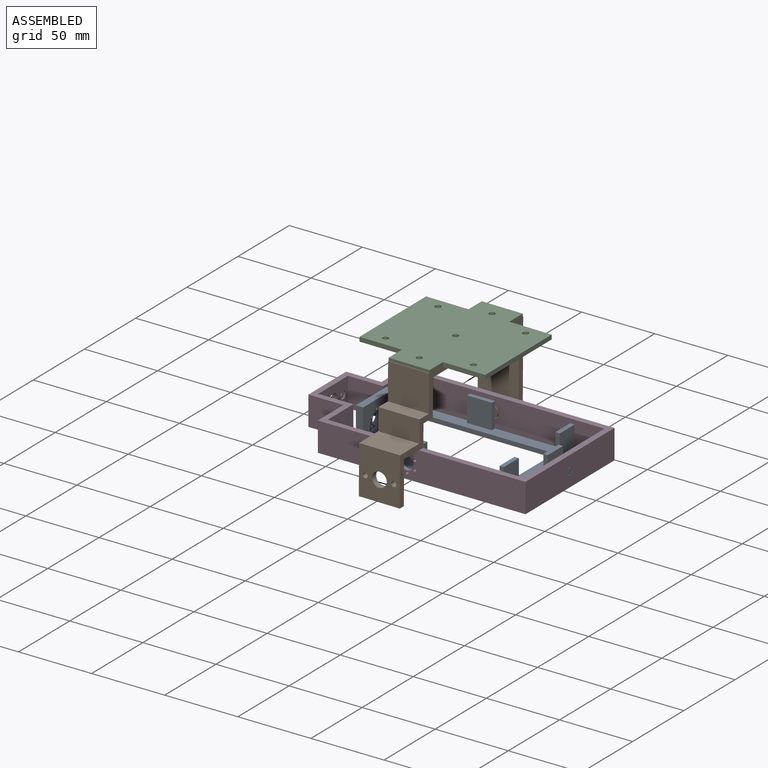
[diagram: assembled view]
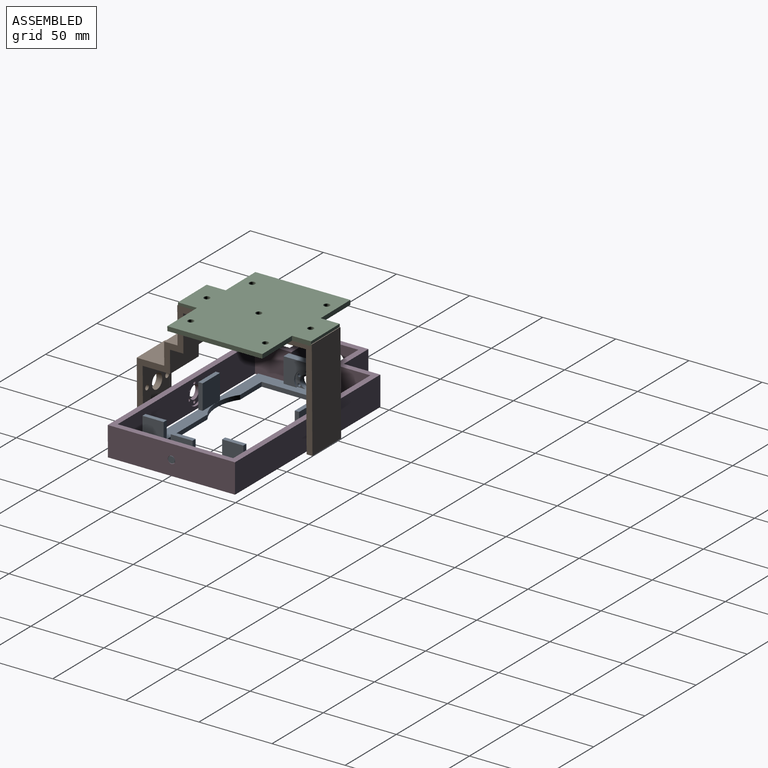
[diagram: assembled view, second angle]
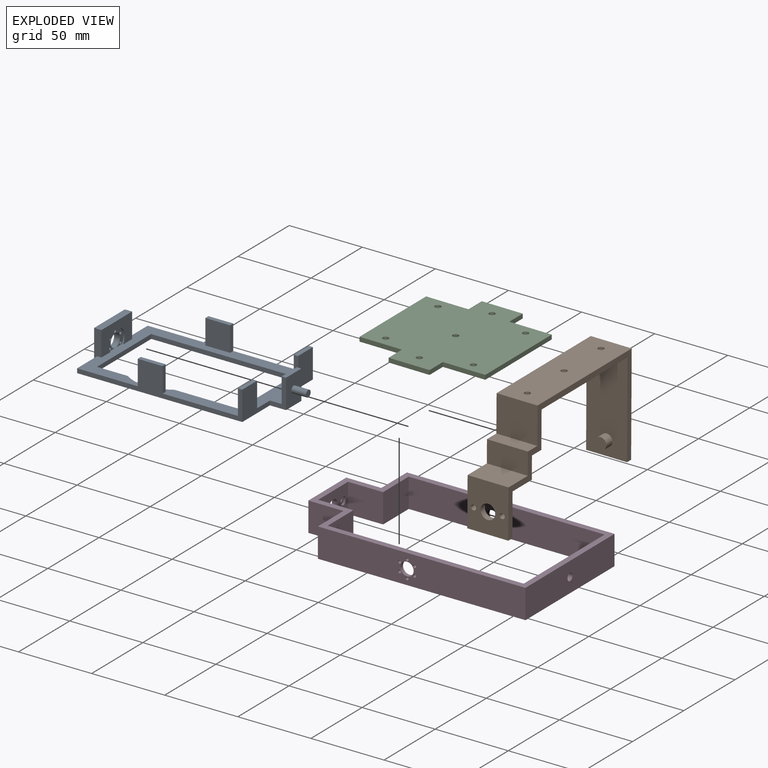
[diagram: exploded view]
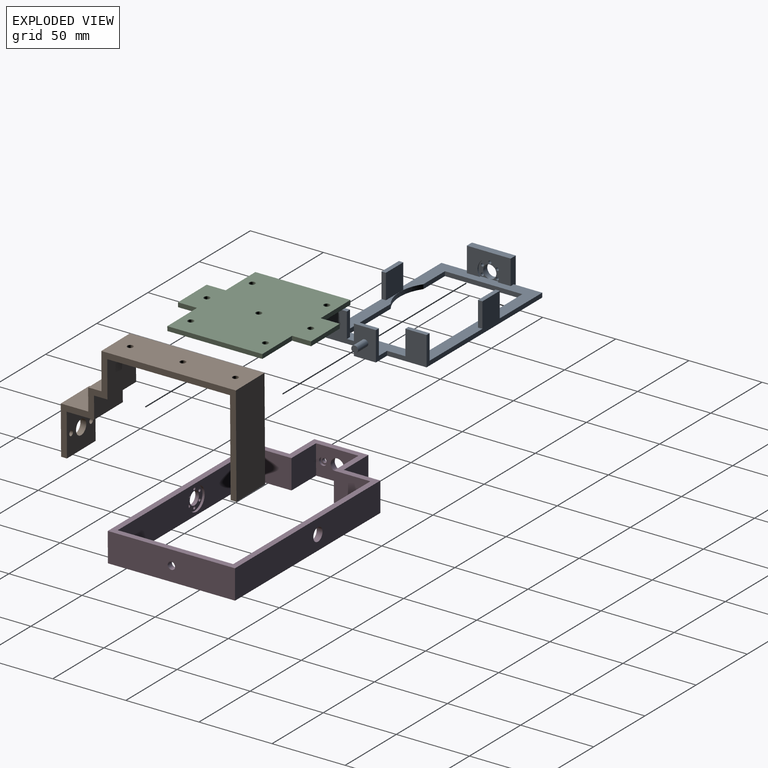
[diagram: exploded view, second angle]
ASSEMBLY  parts=4 mates=3
PART A: 48 faces, bbox 136x69x20 mm
  f0: cylinder r=4.5mm len=9mm, axis (1,0,0), area 113.1mm2, adj f43,f44
  f1: cylinder r=1mm len=4mm, axis (1,0,0), area 25.1mm2, adj f43,f44
  f2: cylinder r=1mm len=4mm, axis (1,0,0), area 25.1mm2, adj f43,f44
  f3: cylinder r=1mm len=4mm, axis (1,0,0), area 25.1mm2, adj f43,f44
  f4: cylinder r=1mm len=4mm, axis (1,0,0), area 25.1mm2, adj f43,f44
  f5: cylinder r=1mm len=4mm, axis (1,0,0), area 25.1mm2, adj f43,f44
  f6: plane 19.5x3mm, normal (1,0,0), area 58.5mm2, adj f7,f9,f24,f33
  f7: plane 121x69mm, normal (0,0,1), area 2401mm2, adj f6,f8,f9,f10,f11,f12,f13,f14
  f8: plane 27x20mm, normal (-1,0,0), area 327.5mm2, adj f7,f9,f18,f24,f36,f38
  f9: plane 113x20mm, normal (0,1,0), area 679mm2, adj f6,f7,f8,f16,f18,f22,f24,f32
  f10: plane 27x20mm, normal (-1,0,0), area 327.5mm2, adj f7,f11,f19,f24,f37,f39
  f11: plane 113x20mm, normal (0,-1,0), area 679mm2, adj f7,f10,f12,f17,f19,f23,f24,f31
  f12: plane 17x14.5mm, normal (1,0,0), area 246.5mm2, adj f7,f11,f19,f37
  f13: plane 17x17mm, normal (0,-1,0), area 289mm2, adj f7,f16,f32,f35
  f14: plane 30x17mm, normal (-1,0,0), area 352.1mm2, adj f7,f20,f30,f33,f45
  f15: plane 17x17mm, normal (0,1,0), area 289mm2, adj f7,f17,f31,f34
  f16: plane 17x3mm, normal (0,0,1), area 51mm2, adj f9,f13,f32,f35
  f17: plane 17x3mm, normal (0,0,1), area 51mm2, adj f11,f15,f31,f34
  f18: plane 14.5x3mm, normal (0,0,1), area 43.5mm2, adj f8,f9,f22,f36
  f19: plane 14.5x3mm, normal (0,0,1), area 43.5mm2, adj f10,f11,f12,f37
  f20: plane 30x5mm, normal (0,0,1), area 150mm2, adj f14,f30,f33,f43
  f21: plane 21.03x3mm, normal (0,-1,0), area 63.1mm2, adj f7,f24,f28,f29
  f22: plane 17x14.5mm, normal (1,0,0), area 246.5mm2, adj f7,f9,f18,f36
  f23: plane 19.5x3mm, normal (1,0,0), area 58.5mm2, adj f7,f11,f24,f30
  f24: plane 126x69mm, normal (0,0,-1), area 2772.5mm2, adj f6,f8,f9,f10,f11,f21,f23,f25
  f25: plane 44.03x3mm, normal (0,-1,0), area 132.1mm2, adj f7,f24,f26,f29
  f26: plane 53x3mm, normal (1,0,0), area 159mm2, adj f7,f24,f25,f27
  f27: plane 97x3mm, normal (0,1,0), area 291mm2, adj f7,f24,f26,f28
  f28: plane 53x3mm, normal (-1,0,0), area 159mm2, adj f7,f21,f24,f27
  f29: cylinder r=28mm len=31.94mm, axis (0,0,1), area 102mm2, adj f7,f21,f24,f25
  f30: plane 20x5mm, normal (0,-1,0), area 91mm2, adj f7,f14,f20,f23,f24,f43
  f31: plane 17x3mm, normal (1,0,0), area 51mm2, adj f7,f11,f15,f17
  f32: plane 17x3mm, normal (1,0,0), area 51mm2, adj f7,f9,f13,f16
  f33: plane 20x5mm, normal (0,1,0), area 91mm2, adj f6,f7,f14,f20,f24,f43
  f34: plane 17x3mm, normal (-1,0,0), area 51mm2, adj f7,f11,f15,f17
  f35: plane 17x3mm, normal (-1,0,0), area 51mm2, adj f7,f9,f13,f16
  f36: plane 17x3mm, normal (0,-1,0), area 51mm2, adj f7,f8,f18,f22
  f37: plane 17x3mm, normal (0,1,0), area 51mm2, adj f7,f10,f12,f19
  f38: plane 20x11mm, normal (0,1,0), area 84mm2, adj f7,f8,f24,f40,f41,f42
  f39: plane 20x11mm, normal (0,-1,0), area 84mm2, adj f7,f10,f24,f40,f41,f42
  f40: plane 20x15mm, normal (-1,0,0), area 283.4mm2, adj f24,f38,f39,f41,f46
  f41: plane 15x3mm, normal (0,0,1), area 45mm2, adj f38,f39,f40,f42
  f42: plane 17x15mm, normal (1,0,0), area 255mm2, adj f7,f38,f39,f41
  f43: plane 30x20mm, normal (1,0,0), area 520.7mm2, adj f0,f1,f2,f3,f4,f5,f20,f24
  f44: plane 15.38x12.19mm, normal (-1,0,0), area 78.6mm2, adj f0,f1,f2,f3,f4,f5,f7,f45
  f45: cylinder r=7.69mm len=15.38mm, axis (-1,0,0), area 33.8mm2, adj f7,f14,f44
  f46: cylinder r=2.3mm len=10mm, axis (1,0,0), area 144.5mm2, adj f40,f47
  f47: plane 4.6x4.6mm, normal (-1,0,0), area 16.6mm2, adj f46
PART B: 26 faces, bbox 28x120x73 mm
  f0: plane 84x28mm, normal (0,0,-1), area 2314.3mm2, adj f7,f8,f16,f17,f23,f24,f25
  f1: plane 92x28mm, normal (0,0,1), area 2538.3mm2, adj f10,f11,f16,f17,f23,f24,f25
  f2: plane 33x28mm, normal (0,-1,0), area 826.2mm2, adj f14,f15,f16,f17,f20,f21,f22
  f3: plane 29x28mm, normal (0,1,0), area 714.2mm2, adj f4,f15,f16,f17,f20,f21,f22
  f4: plane 28x18.81mm, normal (0,0,-1), area 526.7mm2, adj f3,f5,f16,f17
  f5: plane 28x15mm, normal (0,1,0), area 420mm2, adj f4,f6,f16,f17
  f6: plane 28x9.19mm, normal (0,0,-1), area 257.3mm2, adj f5,f7,f16,f17
  f7: plane 28x25mm, normal (0,1,0), area 700mm2, adj f0,f6,f16,f17
  f8: plane 65x28mm, normal (0,-1,0), area 1769.7mm2, adj f0,f9,f16,f17,f18
  f9: plane 28x4mm, normal (0,0,-1), area 112mm2, adj f8,f10,f16,f17
  f10: plane 69x28mm, normal (0,1,0), area 1932mm2, adj f1,f9,f16,f17
  f11: plane 28x25mm, normal (0,-1,0), area 700mm2, adj f1,f12,f16,f17
  f12: plane 28x9.19mm, normal (0,0,1), area 257.3mm2, adj f11,f13,f16,f17
  f13: plane 28x15mm, normal (0,-1,0), area 420mm2, adj f12,f14,f16,f17
  f14: plane 28x18.81mm, normal (0,0,1), area 526.7mm2, adj f2,f13,f16,f17
  f15: plane 28x4mm, normal (0,0,-1), area 112mm2, adj f2,f3,f16,f17
  f16: plane 120x73mm, normal (1,0,0), area 1016mm2, adj f0,f1,f2,f3,f4,f5,f6,f7
  f17: plane 120x73mm, normal (-1,0,0), area 1016mm2, adj f0,f1,f2,f3,f4,f5,f6,f7
  f18: cylinder r=4mm len=8mm, axis (0,1,0), area 150.8mm2, adj f8,f19
  f19: plane 8x8mm, normal (0,-1,0), area 50.3mm2, adj f18
  f20: cylinder r=5mm len=10mm, axis (0,-1,0), area 125.7mm2, adj f2,f3
  f21: cylinder r=1.75mm len=4mm, axis (0,-1,0), area 44mm2, adj f2,f3
  f22: cylinder r=1.75mm len=4mm, axis (0,-1,0), area 44mm2, adj f2,f3
  f23: cylinder r=2mm len=4mm, axis (0,0,1), area 50.3mm2, adj f0,f1
  f24: cylinder r=2mm len=4mm, axis (0,0,1), area 50.3mm2, adj f0,f1
  f25: cylinder r=2mm len=4mm, axis (0,0,1), area 50.3mm2, adj f0,f1
PART C: 21 faces, bbox 86x91x3 mm
  f0: plane 28x3mm, normal (0,1,0), area 84mm2, adj f11,f12,f18,f19
  f1: plane 65x3mm, normal (-1,0,0), area 195mm2, adj f11,f12,f16,f17
  f2: plane 28x3mm, normal (0,-1,0), area 84mm2, adj f11,f12,f14,f15
  f3: plane 65x3mm, normal (1,0,0), area 195mm2, adj f11,f12,f13,f20
  f4: cylinder r=2mm len=4mm, axis (0,0,-1), area 37.7mm2, adj f11,f12
  f5: cylinder r=2mm len=4mm, axis (0,0,-1), area 37.7mm2, adj f11,f12
  f6: cylinder r=2mm len=4mm, axis (0,0,-1), area 37.7mm2, adj f11,f12
  f7: cylinder r=2mm len=4mm, axis (0,0,-1), area 37.7mm2, adj f11,f12
  f8: cylinder r=2mm len=4mm, axis (0,0,-1), area 37.7mm2, adj f11,f12
  f9: cylinder r=2mm len=4mm, axis (0,0,-1), area 37.7mm2, adj f11,f12
  f10: cylinder r=2mm len=4mm, axis (0,0,-1), area 37.7mm2, adj f11,f12
  f11: plane 91x86mm, normal (0,0,1), area 6230mm2, adj f0,f1,f2,f3,f4,f5,f6,f7
  f12: plane 91x86mm, normal (0,0,-1), area 6230mm2, adj f0,f1,f2,f3,f4,f5,f6,f7
  f13: plane 29x3mm, normal (0,-1,0), area 87mm2, adj f3,f11,f12,f14
  f14: plane 13x3mm, normal (1,0,0), area 39mm2, adj f2,f11,f12,f13
  f15: plane 13x3mm, normal (-1,0,0), area 39mm2, adj f2,f11,f12,f16
  f16: plane 29x3mm, normal (0,-1,0), area 87mm2, adj f1,f11,f12,f15
  f17: plane 29x3mm, normal (0,1,0), area 87mm2, adj f1,f11,f12,f18
  f18: plane 13x3mm, normal (-1,0,0), area 39mm2, adj f0,f11,f12,f17
  f19: plane 13x3mm, normal (1,0,0), area 39mm2, adj f0,f11,f12,f20
  f20: plane 29x3mm, normal (0,1,0), area 87mm2, adj f3,f11,f12,f19
PART D: 36 faces, bbox 166x87x20 mm
  f0: cylinder r=4.5mm len=9mm, axis (0,1,0), area 70.7mm2, adj f16,f34
  f1: cylinder r=1mm len=2.5mm, axis (0,-1,0), area 15.7mm2, adj f16,f34
  f2: cylinder r=1mm len=2.5mm, axis (0,-1,0), area 15.7mm2, adj f16,f34
  f3: cylinder r=1mm len=2.5mm, axis (0,-1,0), area 15.7mm2, adj f16,f34
  f4: cylinder r=1mm len=2.5mm, axis (0,-1,0), area 15.7mm2, adj f16,f34
  f5: cylinder r=1mm len=2.5mm, axis (0,-1,0), area 15.7mm2, adj f16,f34
  f6: cylinder r=1mm len=2.5mm, axis (0,-1,0), area 15.7mm2, adj f16,f34
  f7: plane 29x20mm, normal (1,0,0), area 473.9mm2, adj f17,f23,f25,f26,f29,f30,f33
  f8: cylinder r=1.5mm len=3mm, axis (1,0,0), area 23.6mm2, adj f10,f32
  f9: cylinder r=1.5mm len=3mm, axis (1,0,0), area 23.6mm2, adj f10,f31
  f10: plane 37x20mm, normal (-1,0,0), area 662.2mm2, adj f8,f9,f13,f14,f25,f26,f29
  f11: plane 142x20mm, normal (0,1,0), area 2776.4mm2, adj f12,f24,f25,f26,f28
  f12: plane 25x20mm, normal (-1,0,0), area 500mm2, adj f11,f13,f25,f26
  f13: plane 24x20mm, normal (0,1,0), area 480mm2, adj f10,f12,f25,f26
  f14: plane 24x20mm, normal (0,-1,0), area 480mm2, adj f10,f15,f25,f26
  f15: plane 25x20mm, normal (-1,0,0), area 500mm2, adj f14,f16,f25,f26
  f16: plane 142x20mm, normal (0,-1,0), area 2757.5mm2, adj f0,f1,f2,f3,f4,f5,f6,f15
  f17: plane 24x20mm, normal (0,-1,0), area 480mm2, adj f7,f18,f25,f26
  f18: plane 25x20mm, normal (1,0,0), area 500mm2, adj f17,f19,f25,f26
  f19: plane 134x20mm, normal (0,-1,0), area 2616.4mm2, adj f18,f20,f25,f26,f28
  f20: plane 79x20mm, normal (-1,0,0), area 1560.4mm2, adj f19,f21,f25,f26,f27
  f21: plane 134x20mm, normal (0,1,0), area 2483.9mm2, adj f20,f22,f25,f26,f35
  f22: plane 25x20mm, normal (1,0,0), area 500mm2, adj f21,f23,f25,f26
  f23: plane 24x20mm, normal (0,1,0), area 480mm2, adj f7,f22,f25,f26
  f24: plane 87x20mm, normal (1,0,0), area 1720.4mm2, adj f11,f16,f25,f26,f27
  f25: plane 166x87mm, normal (0,0,1), area 1960mm2, adj f7,f10,f11,f12,f13,f14,f15,f16
  f26: plane 166x87mm, normal (0,0,-1), area 1960mm2, adj f7,f10,f11,f12,f13,f14,f15,f16
  f27: cylinder r=2.5mm len=5mm, axis (1,0,0), area 62.8mm2, adj f20,f24
  f28: cylinder r=4.5mm len=9mm, axis (0,1,0), area 113.1mm2, adj f11,f19
  f29: cylinder r=4.5mm len=9mm, axis (1,0,0), area 113.1mm2, adj f7,f10
  f30: cylinder r=2.6mm len=5.2mm, axis (1,0,0), area 24.5mm2, adj f7,f31
  f31: plane 5.2x5.2mm, normal (1,0,0), area 14.2mm2, adj f9,f30
  f32: plane 5.2x5.2mm, normal (1,0,0), area 14.2mm2, adj f8,f33
  f33: cylinder r=2.6mm len=5.2mm, axis (1,0,0), area 24.5mm2, adj f7,f32
  f34: plane 15.8x15.8mm, normal (0,1,0), area 113.6mm2, adj f0,f1,f2,f3,f4,f5,f6,f35
  f35: cylinder r=7.9mm len=15.8mm, axis (0,1,0), area 74.5mm2, adj f21,f34
PLACE A rot(axis=(0,0,1),180deg) t=(85.16,35.02,70.82)mm fixed
PLACE B rot(axis=(0.26,0.97,0),0.4deg) t=(81.8,11.87,100.16)mm
PLACE C rot(axis=(0.26,0.97,0),0.4deg) t=(82.07,38.41,138.7)mm
PLACE D rot(axis=(1,0,0),0.1deg) t=(81.66,35.04,70.82)mm
MATE revolute D.f0 <-> B.f18  axis (0,1,0) through (81.66,74.52,80.9)mm
MATE cylindrical B.f23 <-> C.f9  axis (0.01,0,1) through (82.08,38.41,139.83)mm
MATE revolute D.f27 <-> A.f46  axis (1,0,0) through (162.66,35.02,80.82)mm
